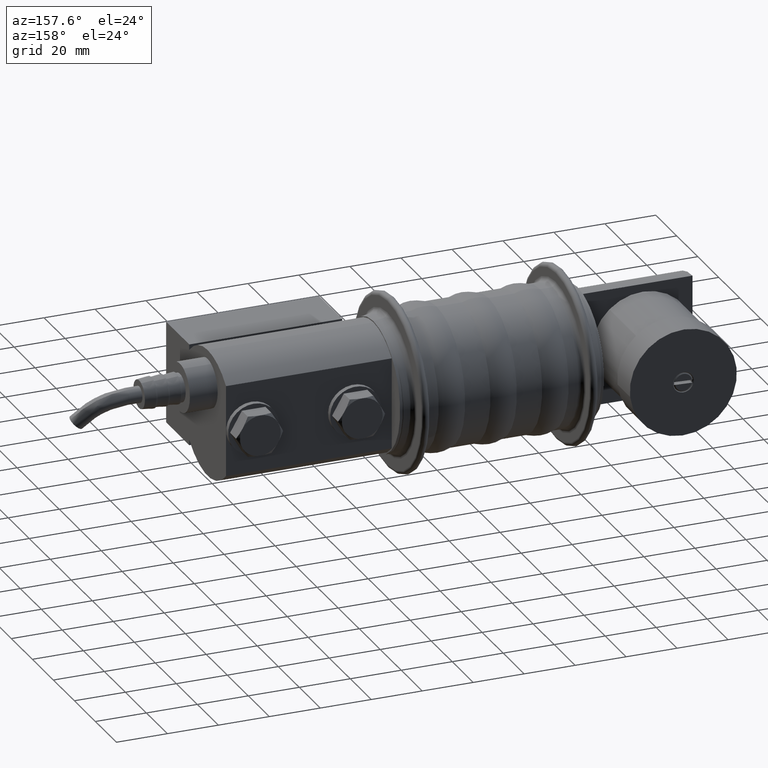
[diagram: clean part render]
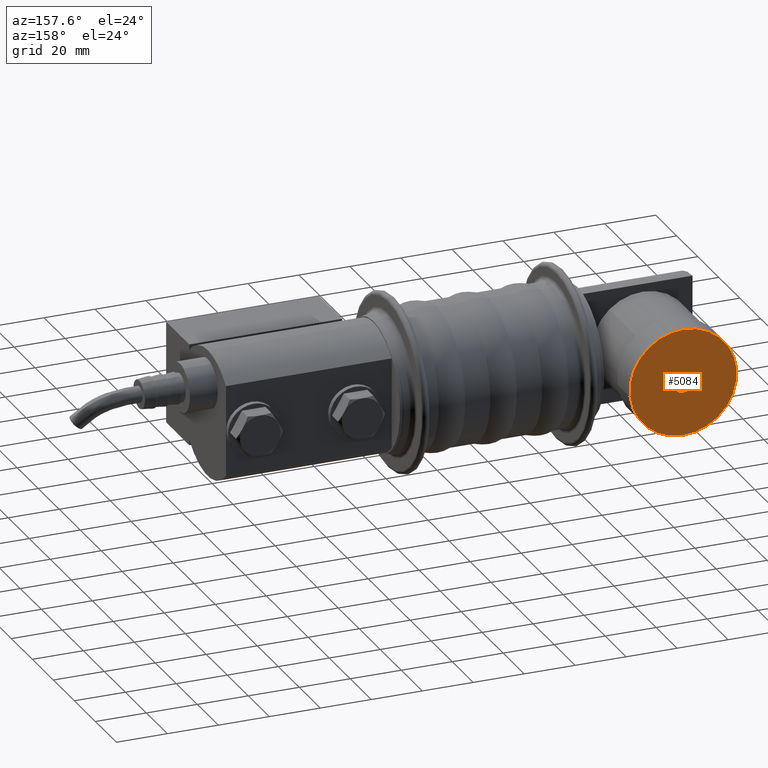
[diagram: same view with one face highlighted and labeled with its STEP entity id]
A machine part, auxiliary view. The second image highlights one B-rep face of the part: STEP entity #5084.
In plain terms, the highlighted planar face has unit normal (0, 1, 0).
Its self-contained STEP definition (entity closure, byte-faithful):
#209 = ORIENTED_EDGE ( 'NONE', *, *, #2786, .T. ) ;
#583 = FACE_OUTER_BOUND ( 'NONE', #5593, .T. ) ;
#1316 = CARTESIAN_POINT ( 'NONE',  ( 0.0000000000000000000, 11.99999999999999600, 0.0000000000000000000 ) ) ;
#1625 = CARTESIAN_POINT ( 'NONE',  ( 0.03416651719589936000, 11.99999999999999600, 0.07090629128469680400 ) ) ;
#1650 = DIRECTION ( 'NONE',  ( 0.0000000000000000000, 1.000000000000000000, 0.0000000000000000000 ) ) ;
#1853 = CARTESIAN_POINT ( 'NONE',  ( 0.03416651719589936000, 11.99999999999999600, 4.095906291284698000 ) ) ;
#2144 = VERTEX_POINT ( 'NONE', #6715 ) ;
#2161 = DIRECTION ( 'NONE',  ( 0.0000000000000000000, 1.000000000000000000, 0.0000000000000000000 ) ) ;
#2188 = CARTESIAN_POINT ( 'NONE',  ( 0.03416651719589936000, 11.99999999999999600, 0.07090629128469680400 ) ) ;
#2254 = VERTEX_POINT ( 'NONE', #1853 ) ;
#2269 = DIRECTION ( 'NONE',  ( 0.0000000000000000000, 0.0000000000000000000, 1.000000000000000000 ) ) ;
#2337 = ORIENTED_EDGE ( 'NONE', *, *, #2622, .T. ) ;
#2581 = ORIENTED_EDGE ( 'NONE', *, *, #5570, .F. ) ;
#2622 = EDGE_CURVE ( 'NONE', #3925, #2144, #3274, .T. ) ;
#2786 = EDGE_CURVE ( 'NONE', #2144, #3925, #3355, .T. ) ;
#2831 = FACE_BOUND ( 'NONE', #2995, .T. ) ;
#2857 = DIRECTION ( 'NONE',  ( 0.0000000000000000000, 1.000000000000000000, 0.0000000000000000000 ) ) ;
#2893 = CARTESIAN_POINT ( 'NONE',  ( 0.03416651719589985200, 11.99999999999999600, -3.954093708715304100 ) ) ;
#2995 = EDGE_LOOP ( 'NONE', ( #3994, #2581 ) ) ;
#3158 = AXIS2_PLACEMENT_3D ( 'NONE', #1625, #2161, #4343 ) ;
#3274 = CIRCLE ( 'NONE', #4691, 21.00000000000000000 ) ;
#3355 = CIRCLE ( 'NONE', #3659, 21.00000000000000000 ) ;
#3609 = VERTEX_POINT ( 'NONE', #2893 ) ;
#3659 = AXIS2_PLACEMENT_3D ( 'NONE', #1316, #2857, #4993 ) ;
#3925 = VERTEX_POINT ( 'NONE', #5295 ) ;
#3994 = ORIENTED_EDGE ( 'NONE', *, *, #4801, .F. ) ;
#4170 = PLANE ( 'NONE',  #4442 ) ;
#4213 = CARTESIAN_POINT ( 'NONE',  ( 0.0000000000000000000, 11.99999999999999600, 0.0000000000000000000 ) ) ;
#4340 = DIRECTION ( 'NONE',  ( 0.0000000000000000000, 1.000000000000000000, 0.0000000000000000000 ) ) ;
#4343 = DIRECTION ( 'NONE',  ( 0.0000000000000000000, 0.0000000000000000000, 1.000000000000000000 ) ) ;
#4365 = CARTESIAN_POINT ( 'NONE',  ( 0.0000000000000000000, 11.99999999999999600, 0.0000000000000000000 ) ) ;
#4442 = AXIS2_PLACEMENT_3D ( 'NONE', #4213, #5235, #6364 ) ;
#4691 = AXIS2_PLACEMENT_3D ( 'NONE', #4365, #4340, #2269 ) ;
#4801 = EDGE_CURVE ( 'NONE', #2254, #3609, #5598, .T. ) ;
#4993 = DIRECTION ( 'NONE',  ( 0.0000000000000000000, 0.0000000000000000000, 1.000000000000000000 ) ) ;
#5008 = CIRCLE ( 'NONE', #3158, 4.025000000000000400 ) ;
#5084 = ADVANCED_FACE ( 'NONE', ( #2831, #583 ), #4170, .T. ) ;
#5235 = DIRECTION ( 'NONE',  ( 0.0000000000000000000, 1.000000000000000000, 0.0000000000000000000 ) ) ;
#5295 = CARTESIAN_POINT ( 'NONE',  ( 0.0000000000000000000, 11.99999999999999600, -21.00000000000000000 ) ) ;
#5570 = EDGE_CURVE ( 'NONE', #3609, #2254, #5008, .T. ) ;
#5593 = EDGE_LOOP ( 'NONE', ( #2337, #209 ) ) ;
#5598 = CIRCLE ( 'NONE', #6443, 4.025000000000000400 ) ;
#6364 = DIRECTION ( 'NONE',  ( 0.0000000000000000000, 0.0000000000000000000, 1.000000000000000000 ) ) ;
#6443 = AXIS2_PLACEMENT_3D ( 'NONE', #2188, #1650, #6465 ) ;
#6465 = DIRECTION ( 'NONE',  ( 0.0000000000000000000, 0.0000000000000000000, 1.000000000000000000 ) ) ;
#6715 = CARTESIAN_POINT ( 'NONE',  ( 2.571758278209441700E-015, 11.99999999999999600, 21.00000000000000000 ) ) ;